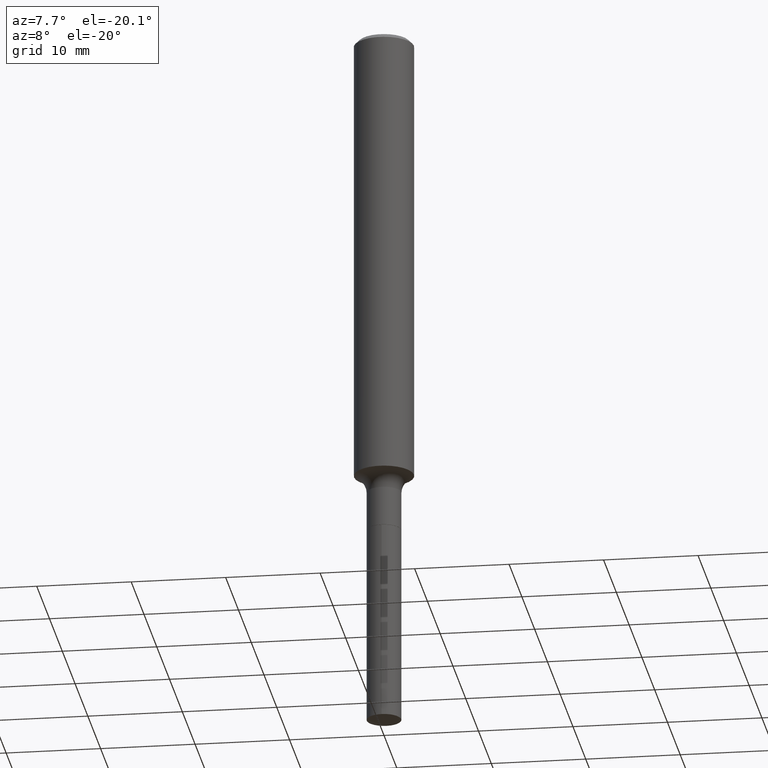
[diagram: clean part render]
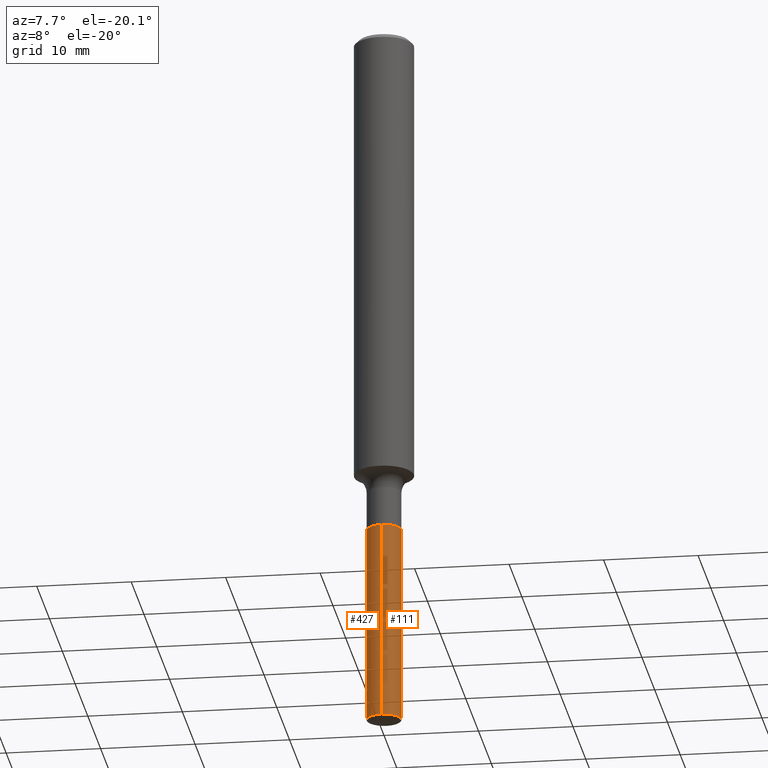
[diagram: same view with one multi-face feature highlighted, each face labeled with its STEP entity id]
A machine part, auxiliary view. The highlighted faces form ONE feature: a constant-radius fillet chain: 2 tangent blend faces with common blend radius 1.8288 mm. The faces share edges in the B-rep.
Their STEP definitions:
[1] entity #111 (Cylinder):
#35 = VECTOR ( 'NONE', #481, 39.37007874015748143 ) ;
#40 = CARTESIAN_POINT ( 'NONE',  ( 5.115907697473244558E-16, 0.07199999999999250055, -2.144000000000000572 ) ) ;
#44 = VERTEX_POINT ( 'NONE', #215 ) ;
#48 = CARTESIAN_POINT ( 'NONE',  ( 5.115907697473447690E-16, 0.07199999999998958622, -2.977298487200713772 ) ) ;
#65 = DIRECTION ( 'NONE',  ( -6.982962677686265133E-15, -1.000000000000000000, 3.794233324533699112E-15 ) ) ;
#68 = EDGE_CURVE ( 'NONE', #305, #44, #445, .T. ) ;
#72 = CYLINDRICAL_SURFACE ( 'NONE', #91, 0.07199999999999999456 ) ;
#82 = VERTEX_POINT ( 'NONE', #447 ) ;
#91 = AXIS2_PLACEMENT_3D ( 'NONE', #367, #105, #411 ) ;
#96 = ORIENTED_EDGE ( 'NONE', *, *, #130, .F. ) ;
#105 = DIRECTION ( 'NONE',  ( -2.444809231722000196E-29, 3.492425887015004158E-15, 1.000000000000000000 ) ) ;
#111 = ADVANCED_FACE ( 'NONE', ( #334 ), #72, .T. ) ;
#118 = CIRCLE ( 'NONE', #364, 0.07199999999999999456 ) ;
#130 = EDGE_CURVE ( 'NONE', #82, #161, #332, .T. ) ;
#142 = CARTESIAN_POINT ( 'NONE',  ( 7.280340954749214592E-29, -1.039596919878991748E-14, -2.977298487200713772 ) ) ;
#143 = EDGE_CURVE ( 'NONE', #82, #305, #265, .T. ) ;
#159 = AXIS2_PLACEMENT_3D ( 'NONE', #142, #295, #252 ) ;
#161 = VERTEX_POINT ( 'NONE', #296 ) ;
#163 = ORIENTED_EDGE ( 'NONE', *, *, #68, .T. ) ;
#198 = DIRECTION ( 'NONE',  ( -2.444809231722000196E-29, 3.492425887015004158E-15, 1.000000000000000000 ) ) ;
#215 = CARTESIAN_POINT ( 'NONE',  ( 5.115907697473449662E-16, 0.07199999999999250055, -2.144000000000000572 ) ) ;
#251 = CARTESIAN_POINT ( 'NONE',  ( 5.243085120460933877E-29, -7.485735990479705492E-15, -2.144000000000000572 ) ) ;
#252 = DIRECTION ( 'NONE',  ( -6.982962677686265133E-15, -1.000000000000000000, 0.000000000000000000 ) ) ;
#265 = CIRCLE ( 'NONE', #159, 0.07199999999999999456 ) ;
#295 = DIRECTION ( 'NONE',  ( -2.444809231722000196E-29, 3.492425887015004158E-15, 1.000000000000000000 ) ) ;
#296 = CARTESIAN_POINT ( 'NONE',  ( -5.027733127933587124E-16, -0.07200000000000747469, -2.144000000000000128 ) ) ;
#305 = VERTEX_POINT ( 'NONE', #48 ) ;
#326 = ORIENTED_EDGE ( 'NONE', *, *, #337, .F. ) ;
#332 = LINE ( 'NONE', #487, #347 ) ;
#334 = FACE_OUTER_BOUND ( 'NONE', #351, .T. ) ;
#337 = EDGE_CURVE ( 'NONE', #161, #44, #118, .T. ) ;
#347 = VECTOR ( 'NONE', #406, 39.37007874015748143 ) ;
#351 = EDGE_LOOP ( 'NONE', ( #359, #163, #326, #96 ) ) ;
#359 = ORIENTED_EDGE ( 'NONE', *, *, #143, .T. ) ;
#364 = AXIS2_PLACEMENT_3D ( 'NONE', #251, #198, #65 ) ;
#367 = CARTESIAN_POINT ( 'NONE',  ( 5.243085120460933877E-29, -7.485735990479705492E-15, -2.144000000000000572 ) ) ;
#406 = DIRECTION ( 'NONE',  ( -2.444809231721999916E-29, 3.492425887015004553E-15, 1.000000000000000000 ) ) ;
#411 = DIRECTION ( 'NONE',  ( -6.982962677686265133E-15, -1.000000000000000000, 3.794233324533699112E-15 ) ) ;
#445 = LINE ( 'NONE', #40, #35 ) ;
#447 = CARTESIAN_POINT ( 'NONE',  ( -5.027733127933383006E-16, -0.07200000000001038902, -2.977298487200713772 ) ) ;
#481 = DIRECTION ( 'NONE',  ( -2.444809231721999916E-29, 3.492425887015004553E-15, 1.000000000000000000 ) ) ;
#487 = CARTESIAN_POINT ( 'NONE',  ( -5.027733127933587124E-16, -0.07200000000000747469, -2.144000000000000128 ) ) ;
[2] entity #427 (Cylinder):
#3 = DIRECTION ( 'NONE',  ( -6.982962677686265133E-15, -1.000000000000000000, 3.794233324533699112E-15 ) ) ;
#17 = DIRECTION ( 'NONE',  ( -2.444809231722000196E-29, 3.492425887015004158E-15, 1.000000000000000000 ) ) ;
#20 = CIRCLE ( 'NONE', #25, 0.07199999999999999456 ) ;
#25 = AXIS2_PLACEMENT_3D ( 'NONE', #264, #121, #3 ) ;
#35 = VECTOR ( 'NONE', #481, 39.37007874015748143 ) ;
#40 = CARTESIAN_POINT ( 'NONE',  ( 5.115907697473244558E-16, 0.07199999999999250055, -2.144000000000000572 ) ) ;
#44 = VERTEX_POINT ( 'NONE', #215 ) ;
#48 = CARTESIAN_POINT ( 'NONE',  ( 5.115907697473447690E-16, 0.07199999999998958622, -2.977298487200713772 ) ) ;
#63 = DIRECTION ( 'NONE',  ( -6.982962677686265133E-15, -1.000000000000000000, 3.794233324533699112E-15 ) ) ;
#68 = EDGE_CURVE ( 'NONE', #305, #44, #445, .T. ) ;
#82 = VERTEX_POINT ( 'NONE', #447 ) ;
#85 = CYLINDRICAL_SURFACE ( 'NONE', #392, 0.07199999999999999456 ) ;
#121 = DIRECTION ( 'NONE',  ( -2.444809231722000196E-29, 3.492425887015004158E-15, 1.000000000000000000 ) ) ;
#130 = EDGE_CURVE ( 'NONE', #82, #161, #332, .T. ) ;
#136 = DIRECTION ( 'NONE',  ( -6.982962677686265133E-15, -1.000000000000000000, 0.000000000000000000 ) ) ;
#152 = AXIS2_PLACEMENT_3D ( 'NONE', #486, #212, #136 ) ;
#161 = VERTEX_POINT ( 'NONE', #296 ) ;
#188 = EDGE_CURVE ( 'NONE', #44, #161, #20, .T. ) ;
#212 = DIRECTION ( 'NONE',  ( -2.444809231722000196E-29, 3.492425887015004158E-15, 1.000000000000000000 ) ) ;
#215 = CARTESIAN_POINT ( 'NONE',  ( 5.115907697473449662E-16, 0.07199999999999250055, -2.144000000000000572 ) ) ;
#234 = CARTESIAN_POINT ( 'NONE',  ( 5.243085120460933877E-29, -7.485735990479705492E-15, -2.144000000000000572 ) ) ;
#235 = ORIENTED_EDGE ( 'NONE', *, *, #188, .F. ) ;
#264 = CARTESIAN_POINT ( 'NONE',  ( 5.243085120460933877E-29, -7.485735990479705492E-15, -2.144000000000000572 ) ) ;
#283 = ORIENTED_EDGE ( 'NONE', *, *, #68, .F. ) ;
#296 = CARTESIAN_POINT ( 'NONE',  ( -5.027733127933587124E-16, -0.07200000000000747469, -2.144000000000000128 ) ) ;
#299 = CIRCLE ( 'NONE', #152, 0.07199999999999999456 ) ;
#303 = EDGE_LOOP ( 'NONE', ( #283, #472, #478, #235 ) ) ;
#305 = VERTEX_POINT ( 'NONE', #48 ) ;
#324 = EDGE_CURVE ( 'NONE', #305, #82, #299, .T. ) ;
#332 = LINE ( 'NONE', #487, #347 ) ;
#347 = VECTOR ( 'NONE', #406, 39.37007874015748143 ) ;
#392 = AXIS2_PLACEMENT_3D ( 'NONE', #234, #17, #63 ) ;
#406 = DIRECTION ( 'NONE',  ( -2.444809231721999916E-29, 3.492425887015004553E-15, 1.000000000000000000 ) ) ;
#426 = FACE_OUTER_BOUND ( 'NONE', #303, .T. ) ;
#427 = ADVANCED_FACE ( 'NONE', ( #426 ), #85, .T. ) ;
#445 = LINE ( 'NONE', #40, #35 ) ;
#447 = CARTESIAN_POINT ( 'NONE',  ( -5.027733127933383006E-16, -0.07200000000001038902, -2.977298487200713772 ) ) ;
#472 = ORIENTED_EDGE ( 'NONE', *, *, #324, .T. ) ;
#478 = ORIENTED_EDGE ( 'NONE', *, *, #130, .T. ) ;
#481 = DIRECTION ( 'NONE',  ( -2.444809231721999916E-29, 3.492425887015004553E-15, 1.000000000000000000 ) ) ;
#486 = CARTESIAN_POINT ( 'NONE',  ( 7.280340954749214592E-29, -1.039596919878991748E-14, -2.977298487200713772 ) ) ;
#487 = CARTESIAN_POINT ( 'NONE',  ( -5.027733127933587124E-16, -0.07200000000000747469, -2.144000000000000128 ) ) ;